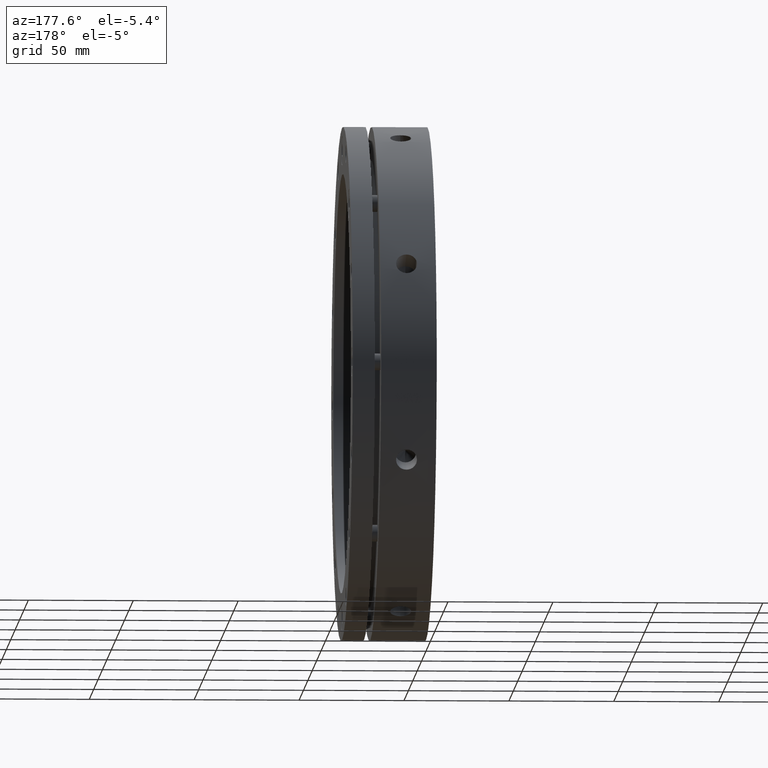
[diagram: clean part render]
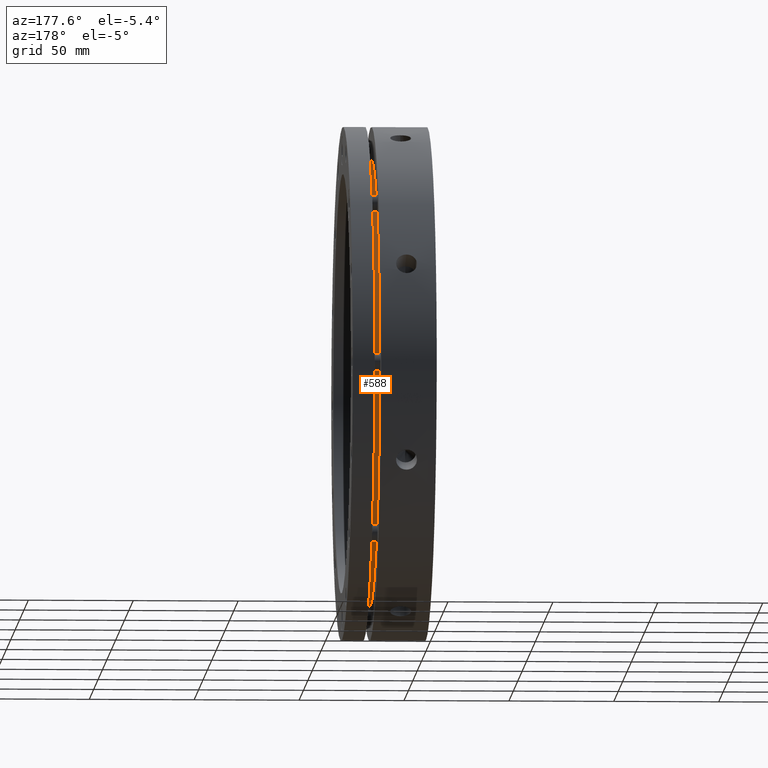
[diagram: same view with one face highlighted and labeled with its STEP entity id]
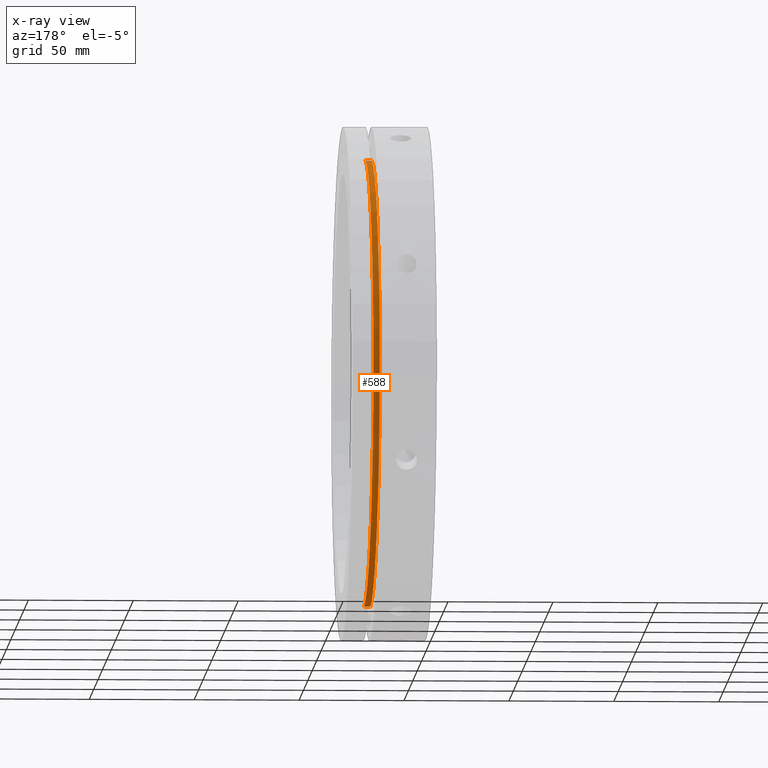
[diagram: x-ray of the same camera — body ghosted, the highlighted face saturated]
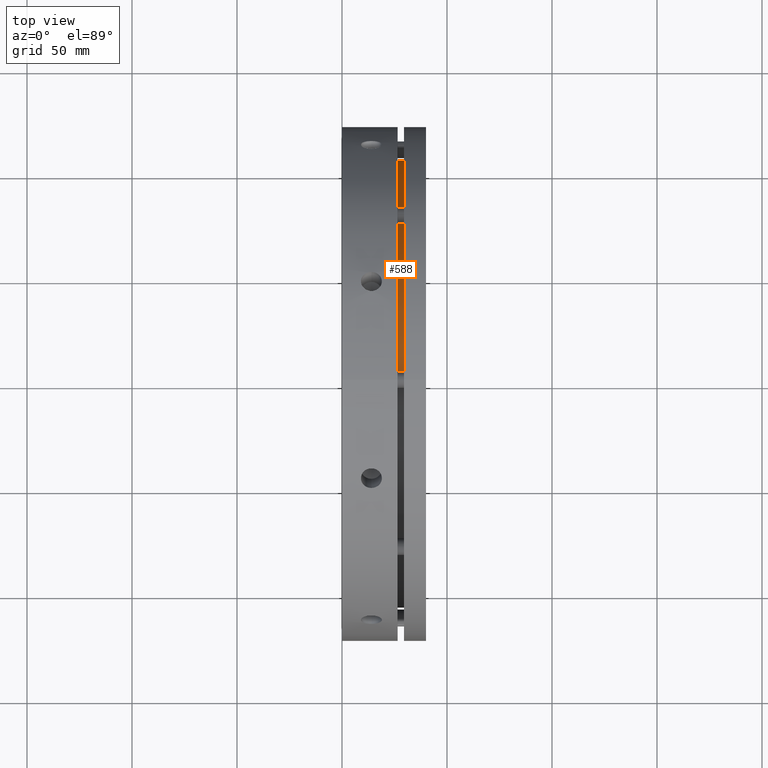
[diagram: same view with one face highlighted and labeled with its STEP entity id]
A machine part, auxiliary view. The second image highlights one B-rep face of the part: STEP entity #588.
The next image is the same camera in x-ray: the body ghosted, the highlighted face saturated — about 2% of this face is hidden behind the body in this view.
A second angle (top view) of the same face is appended — the face is thin or edge-on in the first view.
In plain terms, the highlighted cylindrical surface (partial cylindrical patch) has radius 106.5 mm, axis along (-1, 0, 0).
Its self-contained STEP definition (entity closure, byte-faithful):
#588 = ADVANCED_FACE ( 'NONE', ( #4680 ), #4696, .T. ) ;
#1223 = LINE ( 'NONE', #5754, #1239 ) ;
#1231 = CIRCLE ( 'NONE', #4470, 106.5000000000000000 ) ;
#1239 = VECTOR ( 'NONE', #5748, 1000.000000000000000 ) ;
#1260 = LINE ( 'NONE', #5743, #1264 ) ;
#1264 = VECTOR ( 'NONE', #5742, 1000.000000000000000 ) ;
#1271 = CIRCLE ( 'NONE', #4469, 106.5000000000000000 ) ;
#1546 = EDGE_LOOP ( 'NONE', ( #2065, #2098, #2069, #2102 ) ) ;
#1984 = VERTEX_POINT ( 'NONE', #4112 ) ;
#2065 = ORIENTED_EDGE ( 'NONE', *, *, #3211, .T. ) ;
#2069 = ORIENTED_EDGE ( 'NONE', *, *, #3209, .T. ) ;
#2098 = ORIENTED_EDGE ( 'NONE', *, *, #3210, .T. ) ;
#2102 = ORIENTED_EDGE ( 'NONE', *, *, #3208, .F. ) ;
#2719 = DIRECTION ( 'NONE',  ( 0.0000000000000000000, 0.0000000000000000000, 1.000000000000000000 ) ) ;
#2721 = DIRECTION ( 'NONE',  ( -1.000000000000000000, 0.0000000000000000000, 0.0000000000000000000 ) ) ;
#2723 = CARTESIAN_POINT ( 'NONE',  ( 27.99999999999997200, 0.0000000000000000000, 0.0000000000000000000 ) ) ;
#2901 = VERTEX_POINT ( 'NONE', #4304 ) ;
#2951 = VERTEX_POINT ( 'NONE', #5051 ) ;
#2956 = VERTEX_POINT ( 'NONE', #5056 ) ;
#3208 = EDGE_CURVE ( 'NONE', #2951, #1984, #1260, .T. ) ;
#3209 = EDGE_CURVE ( 'NONE', #2956, #1984, #1231, .T. ) ;
#3210 = EDGE_CURVE ( 'NONE', #2901, #2956, #1223, .T. ) ;
#3211 = EDGE_CURVE ( 'NONE', #2951, #2901, #1271, .T. ) ;
#4112 = CARTESIAN_POINT ( 'NONE',  ( 26.49999999999996800, 0.0000000000000000000, 106.5000000000000000 ) ) ;
#4304 = CARTESIAN_POINT ( 'NONE',  ( 29.49999999999997500, 1.304248841091931200E-014, -106.5000000000000000 ) ) ;
#4469 = AXIS2_PLACEMENT_3D ( 'NONE', #5760, #5761, #5762 ) ;
#4470 = AXIS2_PLACEMENT_3D ( 'NONE', #5755, #5756, #5757 ) ;
#4680 = FACE_OUTER_BOUND ( 'NONE', #1546, .T. ) ;
#4696 = CYLINDRICAL_SURFACE ( 'NONE', #4885, 106.5000000000000000 ) ;
#4885 = AXIS2_PLACEMENT_3D ( 'NONE', #2723, #2721, #2719 ) ;
#5051 = CARTESIAN_POINT ( 'NONE',  ( 29.49999999999997500, 0.0000000000000000000, 106.5000000000000000 ) ) ;
#5056 = CARTESIAN_POINT ( 'NONE',  ( 26.49999999999996800, 1.304248841091931200E-014, -106.5000000000000000 ) ) ;
#5742 = DIRECTION ( 'NONE',  ( -1.000000000000000000, 0.0000000000000000000, 0.0000000000000000000 ) ) ;
#5743 = CARTESIAN_POINT ( 'NONE',  ( 27.99999999999997200, 0.0000000000000000000, 106.5000000000000000 ) ) ;
#5748 = DIRECTION ( 'NONE',  ( -1.000000000000000000, 0.0000000000000000000, 0.0000000000000000000 ) ) ;
#5754 = CARTESIAN_POINT ( 'NONE',  ( 27.99999999999997200, 1.304248841091931200E-014, -106.5000000000000000 ) ) ;
#5755 = CARTESIAN_POINT ( 'NONE',  ( 26.49999999999996800, 0.0000000000000000000, 0.0000000000000000000 ) ) ;
#5756 = DIRECTION ( 'NONE',  ( 1.000000000000000000, -0.0000000000000000000, -0.0000000000000000000 ) ) ;
#5757 = DIRECTION ( 'NONE',  ( 0.0000000000000000000, 0.0000000000000000000, 1.000000000000000000 ) ) ;
#5760 = CARTESIAN_POINT ( 'NONE',  ( 29.49999999999997500, 0.0000000000000000000, 0.0000000000000000000 ) ) ;
#5761 = DIRECTION ( 'NONE',  ( -1.000000000000000000, 0.0000000000000000000, 0.0000000000000000000 ) ) ;
#5762 = DIRECTION ( 'NONE',  ( 0.0000000000000000000, 0.0000000000000000000, 1.000000000000000000 ) ) ;